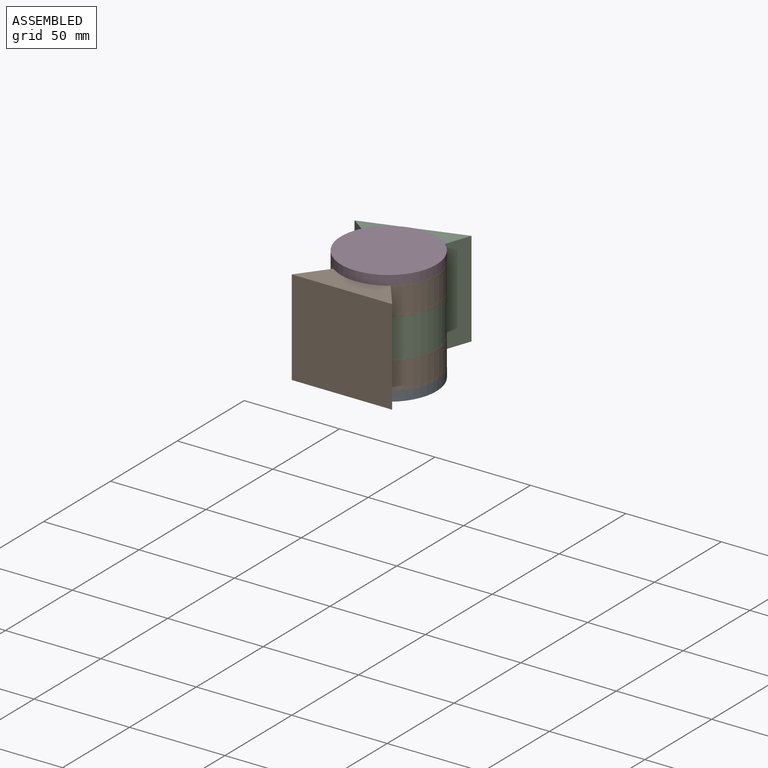
[diagram: assembled view]
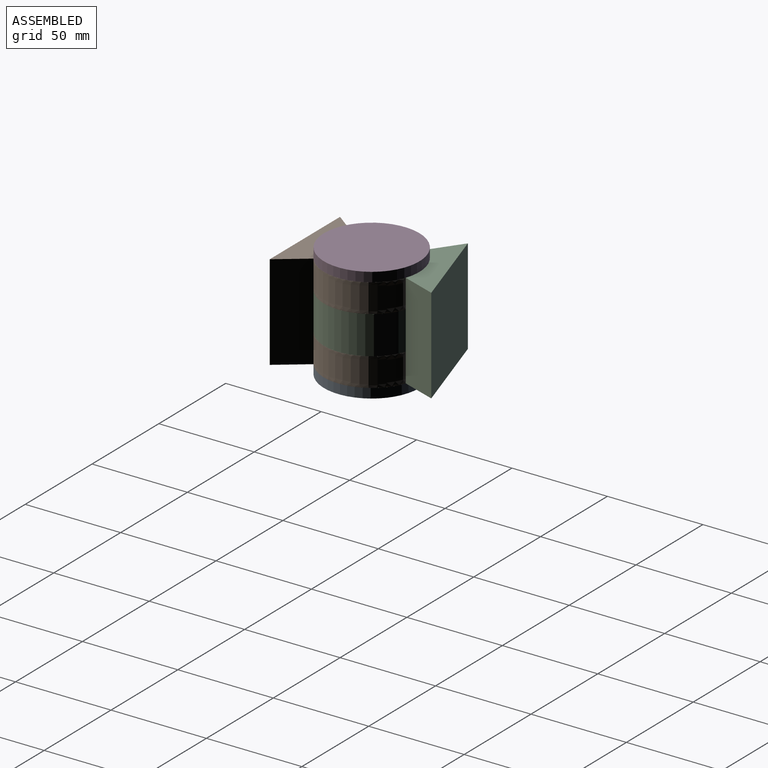
[diagram: assembled view, second angle]
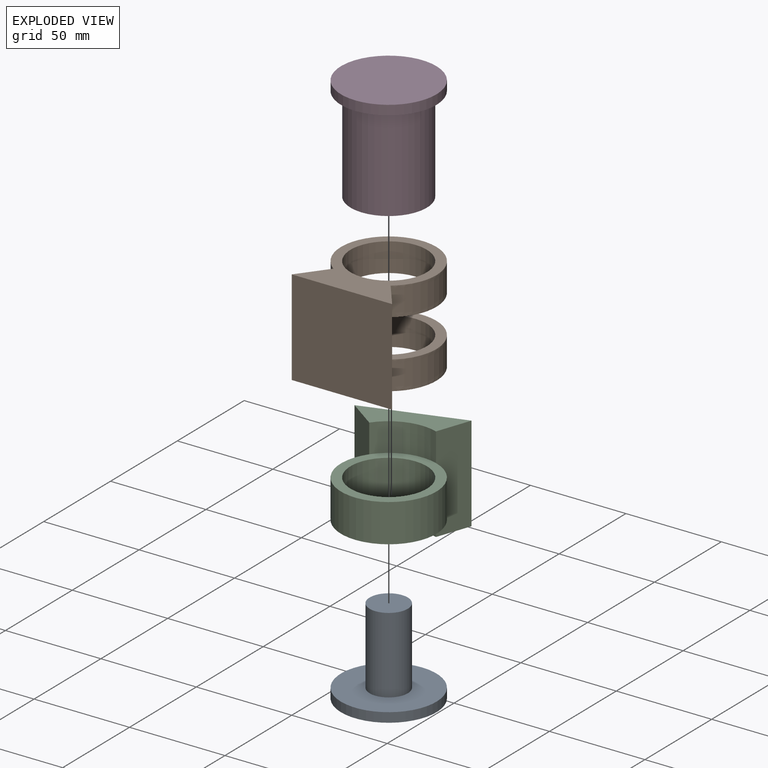
[diagram: exploded view]
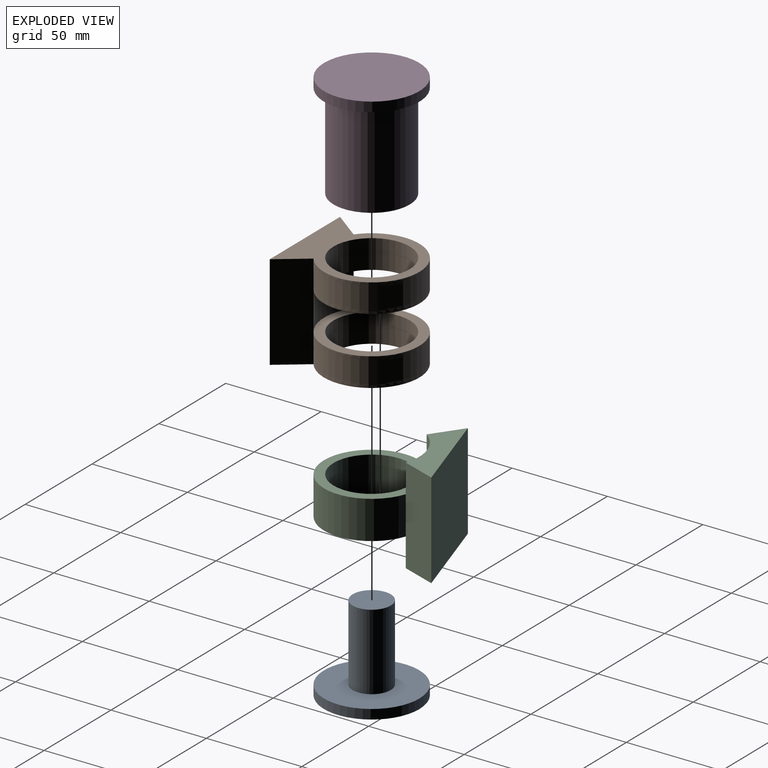
[diagram: exploded view, second angle]
ASSEMBLY  parts=4 mates=3
PART A: 5 faces, bbox 50x45x50 mm
  f0: cylinder r=25mm len=50mm, axis (0,1,0), area 785.4mm2, adj f1,f2
  f1: plane 50x50mm, normal (0,-1,0), area 1963.5mm2, adj f0
  f2: plane 50x50mm, normal (0,1,0), area 1649.3mm2, adj f0,f3
  f3: cylinder r=10mm len=40mm, axis (0,-1,0), area 2513.3mm2, adj f2,f4
  f4: plane 20x20mm, normal (0,1,0), area 314.2mm2, adj f3
PART B: 12 faces, bbox 52.6x50x60 mm
  f0: cylinder r=25mm len=30mm, axis (0,1,0), area 643.5mm2, adj f1,f3,f8,f11
  f1: plane 50x15mm, normal (-0.8,0,0.6), area 939.1mm2, adj f0,f2,f4,f5,f7,f10
  f2: plane 52.61x50mm, normal (0,0,-1), area 2630.3mm2, adj f1,f3,f4,f5
  f3: plane 50x15mm, normal (0.8,0,0.6), area 939.1mm2, adj f0,f2,f4,f5,f7,f10
  f4: plane 60x52.61mm, normal (0,-1,0), area 1224.3mm2, adj f1,f2,f3,f6,f7
  f5: plane 60x52.61mm, normal (0,1,0), area 1224.3mm2, adj f1,f2,f3,f9,f10
  f6: cylinder r=20mm len=40mm, axis (0,-1,0), area 1885mm2, adj f4,f8
  f7: extruded ~50x45mm, area 1873.7mm2, adj f1,f3,f4,f8
  f8: plane 50.01x50mm, normal (0,1,0), area 707mm2, adj f0,f6,f7
  f9: cylinder r=20mm len=40mm, axis (0,1,0), area 1885mm2, adj f5,f11
  f10: extruded ~50x45mm, area 1873.7mm2, adj f1,f3,f5,f11
  f11: plane 50.01x50mm, normal (0,-1,0), area 707mm2, adj f0,f9,f10
PART C: 11 faces, bbox 50x52.6x60 mm
  f0: cylinder r=25mm len=50mm, axis (-1,0,0), area 2498.1mm2, adj f1,f2,f6,f8
  f1: plane 50x50mm, normal (1,0,0), area 706.9mm2, adj f0,f3,f5
  f2: plane 50x50mm, normal (-1,0,0), area 706.9mm2, adj f0,f3,f4
  f3: cylinder r=20mm len=40mm, axis (-1,0,0), area 2513.3mm2, adj f1,f2
  f4: cylinder r=25mm len=30mm, axis (-1,0,0), area 482.6mm2, adj f2,f6,f8,f10
  f5: cylinder r=25mm len=30mm, axis (-1,0,0), area 482.6mm2, adj f1,f6,f8,f9
  f6: plane 50x15mm, normal (0,-0.8,0.6), area 939.1mm2, adj f0,f4,f5,f7,f9,f10
  f7: plane 52.61x50mm, normal (0,0,-1), area 2630.3mm2, adj f6,f8,f9,f10
  f8: plane 50x15mm, normal (0,0.8,0.6), area 939.1mm2, adj f0,f4,f5,f7,f9,f10
  f9: plane 52.61x15mm, normal (1,0,0), area 517.4mm2, adj f5,f6,f7,f8
  f10: plane 52.61x15mm, normal (-1,0,0), area 517.4mm2, adj f4,f6,f7,f8
PART D: 7 faces, bbox 50x55x50 mm
  f0: cylinder r=25mm len=50mm, axis (0,1,0), area 785.4mm2, adj f1,f2
  f1: plane 50x50mm, normal (0,-1,0), area 1963.5mm2, adj f0
  f2: plane 50x50mm, normal (0,1,0), area 706.9mm2, adj f0,f3
  f3: cylinder r=20mm len=50mm, axis (0,-1,0), area 6283.2mm2, adj f2,f4
  f4: plane 40x40mm, normal (0,1,0), area 942.5mm2, adj f3,f5
  f5: cylinder r=10mm len=40mm, axis (0,1,0), area 2513.3mm2, adj f4,f6
  f6: plane 20x20mm, normal (0,1,0), area 314.2mm2, adj f5
PLACE A rot(axis=(1,0,0),90deg) t=(26.3,35,0)mm
PLACE B rot(axis=(-1,0,0),90deg) t=(26.3,35,25)mm
PLACE C rot(axis=(0.63,-0.46,0.63),130.7deg) t=(26.3,35,25)mm
PLACE D rot(axis=(-1,0,0),90deg) t=(26.3,35,50)mm
MATE fastened A.f0 <-> D.f3  axis (0,0,1) through (26.3,35,0)mm
MATE fastened D.f5 <-> B.f6  axis (0,0,-1) through (26.3,35,50)mm
MATE revolute C.f0 <-> B.f0  axis (0,0,-1) through (26.3,35,25)mm
